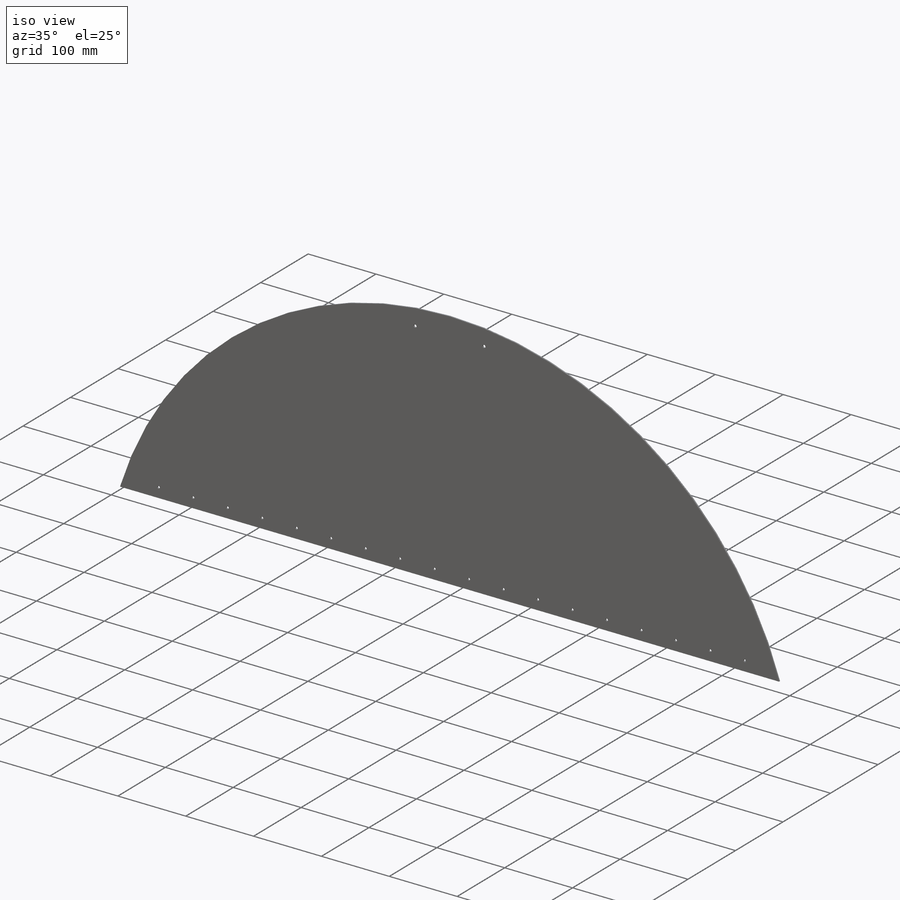
[diagram: iso view]
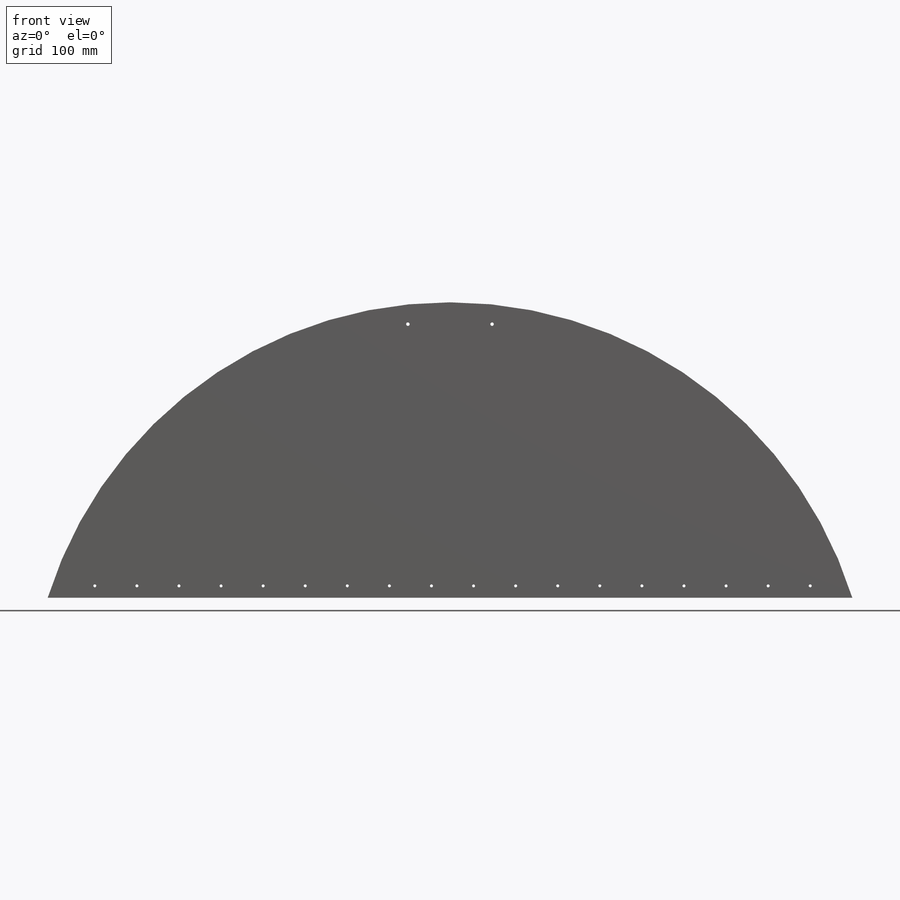
[diagram: front view]
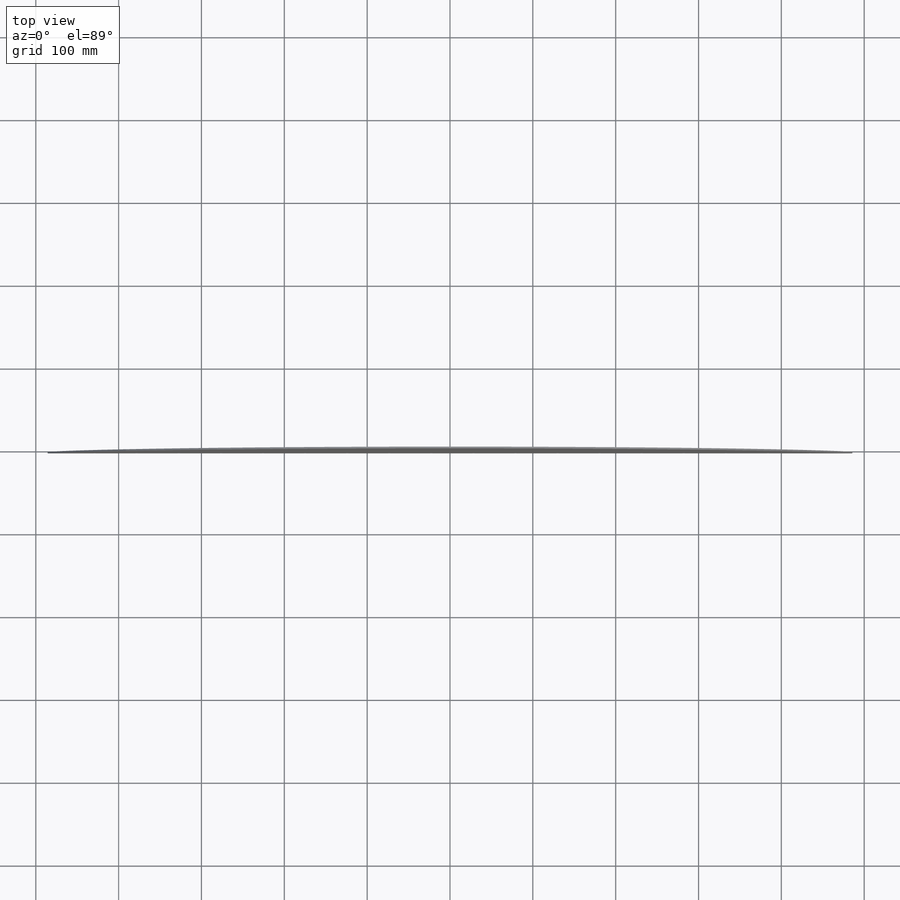
[diagram: top view]
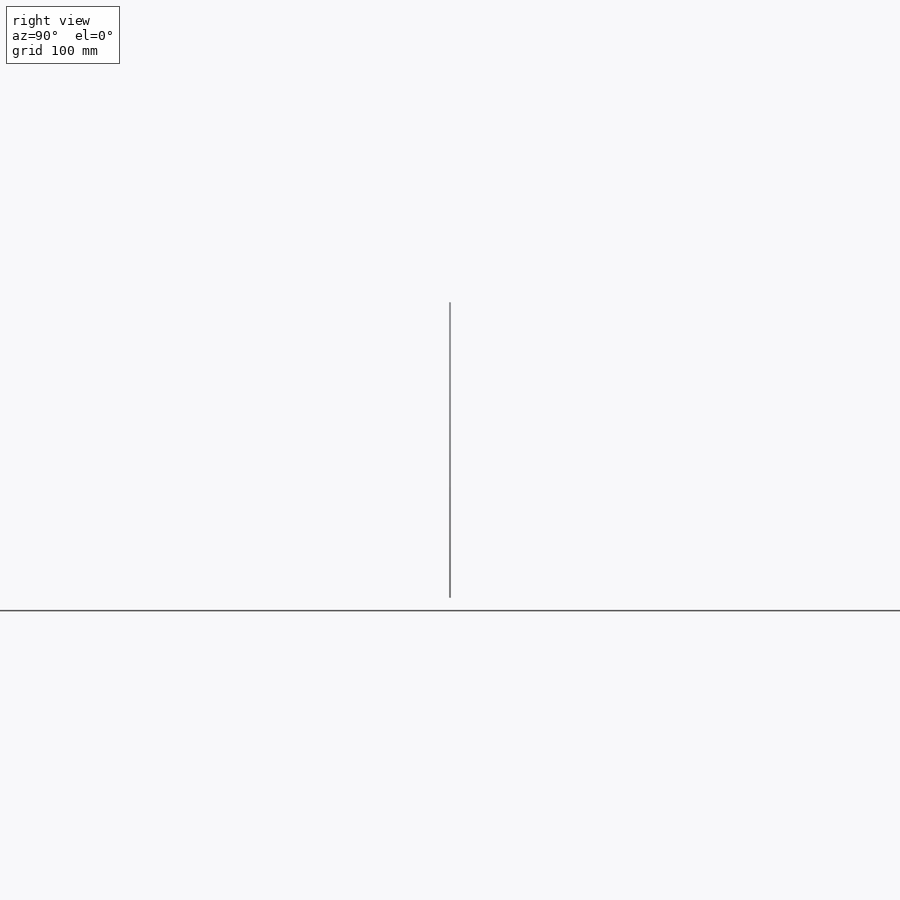
[diagram: right view]
SOLIDWORKS PART (.sldprt)
format: sldprt  version: not decoded by parser v0  size: 231,424 bytes
history: native  units: mm
features: sketch x3, cut_extrude x2, material x1, extrude x1, pattern_linear x1 (+16 scaffold rows collapsed)
feature tree (24):
  scaffold x16  (default folders/planes/origin — collapsed)
  material  "Wrought Stainless Steel"
  sketch  "Sketch1"  dims[D1=508.9906mm D2=152.4mm]
  extrude  "Boss-Extrude1"  Depth=1.98374mm
  sketch  "Sketch2"  dims[c1.D1=3.556mm c1.D3=3.556mm c1.D2=14.2875mm c2.D3=50.8mm]
  cut_extrude  "Cut-Extrude1"  Depth=25.4mm
  pattern_linear  "LPattern1"  Count1=18 Count2=1 Spacing1=50.8mm Spacing2=2.54mm
  sketch  "Sketch3"  dims[c1.D1=~15.742159mm c1.D2=~14.397246mm c1.D3=~15.742159mm c1.D4=4.191mm c1.D5=4.191mm c1.D6=4.191mm c2.D1=50.8mm c2.D2=101.6mm c2.D3=330.2mm c2.D6=330.2mm]
  cut_extrude  "Cut-Extrude2"  Depth=1.98374mm
decode coverage: 7 of 7 modeling features carry decoded parameters
note: ~ marks probable driven/reference dimensions
note: suppression state not decoded; provenance and decode notes live in map.json
